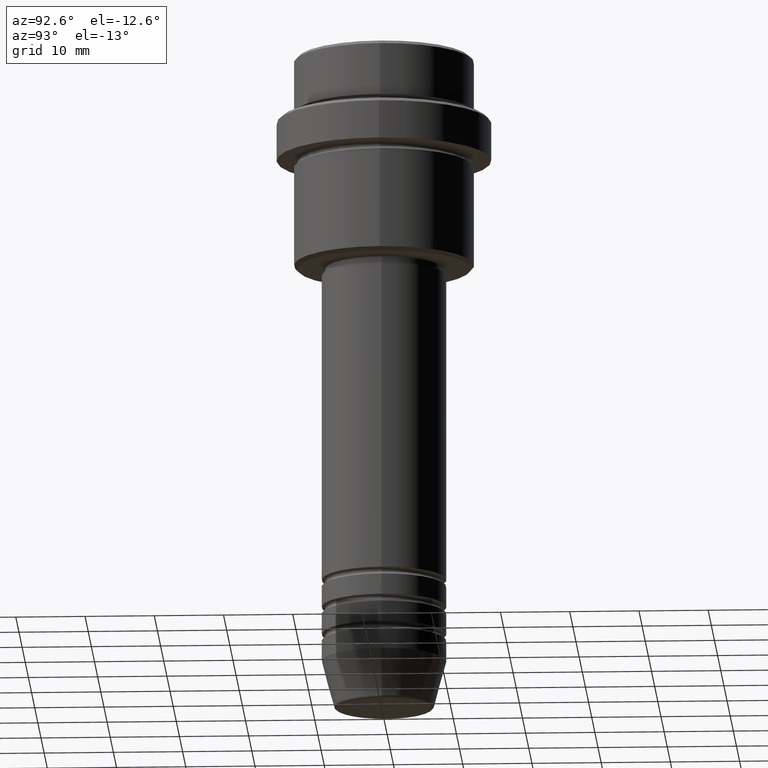
[diagram: clean part render]
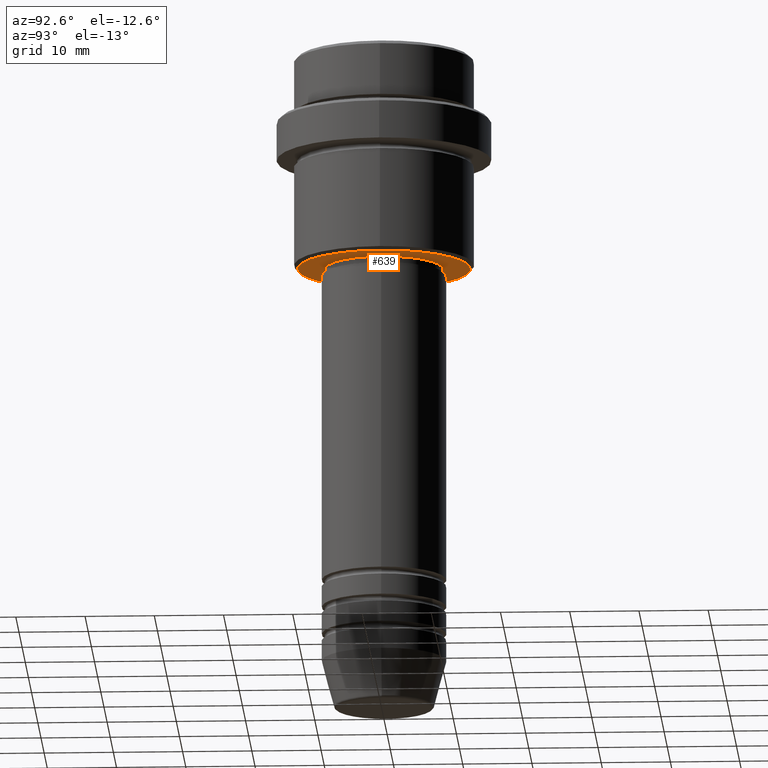
[diagram: same view with one face highlighted and labeled with its STEP entity id]
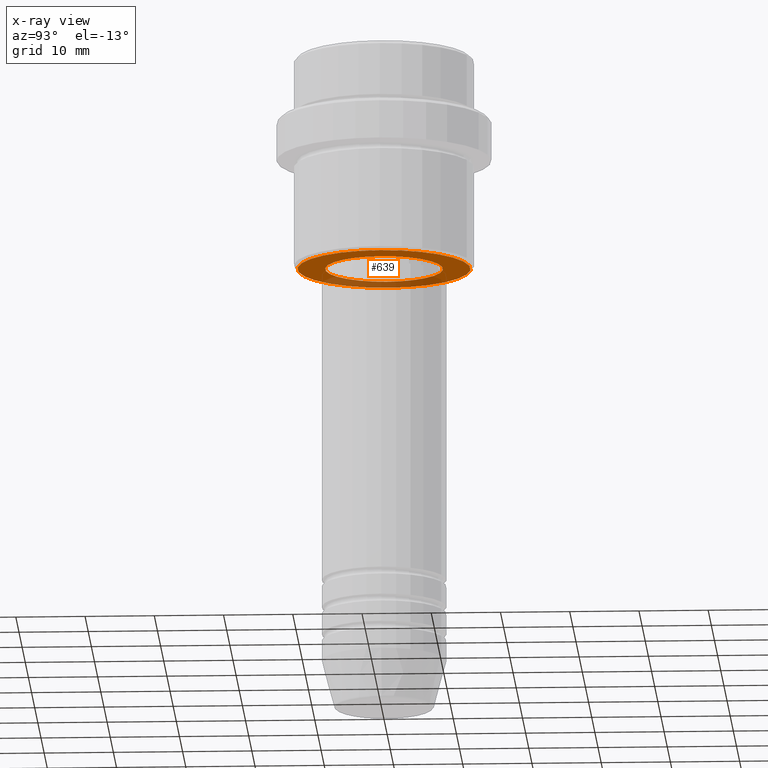
[diagram: x-ray of the same camera — body ghosted, the highlighted face saturated]
A machine part, auxiliary view. The second image highlights one B-rep face of the part: STEP entity #639.
The next image is the same camera in x-ray: the body ghosted, the highlighted face saturated — about 28% of this face is hidden behind the body in this view.
In plain terms, the highlighted planar face has unit normal (0, 0, -1).
Its self-contained STEP definition (entity closure, byte-faithful):
#15 = FACE_OUTER_BOUND ( 'NONE', #675, .T. ) ;
#32 = VERTEX_POINT ( 'NONE', #83 ) ;
#38 = DIRECTION ( 'NONE',  ( -1.000000000000000000, 0.000000000000000000, -0.000000000000000000 ) ) ;
#49 = FACE_BOUND ( 'NONE', #570, .T. ) ;
#83 = CARTESIAN_POINT ( 'NONE',  ( 12.49999999999998401, 0.000000000000000000, -30.99999999999999645 ) ) ;
#150 = CARTESIAN_POINT ( 'NONE',  ( 0.000000000000000000, 13.00000000000000000, -30.99999999999999645 ) ) ;
#167 = VERTEX_POINT ( 'NONE', #634 ) ;
#189 = AXIS2_PLACEMENT_3D ( 'NONE', #879, #762, #643 ) ;
#195 = DIRECTION ( 'NONE',  ( 1.000000000000000000, 0.000000000000000000, 0.000000000000000000 ) ) ;
#218 = AXIS2_PLACEMENT_3D ( 'NONE', #1031, #463, #352 ) ;
#274 = EDGE_CURVE ( 'NONE', #167, #761, #751, .T. ) ;
#292 = EDGE_CURVE ( 'NONE', #1345, #32, #313, .T. ) ;
#300 = CARTESIAN_POINT ( 'NONE',  ( 0.000000000000000000, 0.000000000000000000, -30.99999999999999645 ) ) ;
#313 = CIRCLE ( 'NONE', #1086, 12.49999999999998401 ) ;
#352 = DIRECTION ( 'NONE',  ( -1.000000000000000000, 0.000000000000000000, 0.000000000000000000 ) ) ;
#455 = ORIENTED_EDGE ( 'NONE', *, *, #274, .T. ) ;
#463 = DIRECTION ( 'NONE',  ( 0.000000000000000000, 0.000000000000000000, -1.000000000000000000 ) ) ;
#570 = EDGE_LOOP ( 'NONE', ( #455, #1281 ) ) ;
#620 = DIRECTION ( 'NONE',  ( -0.000000000000000000, -0.000000000000000000, 1.000000000000000000 ) ) ;
#634 = CARTESIAN_POINT ( 'NONE',  ( 8.499999999999994671, 0.000000000000000000, -30.99999999999999289 ) ) ;
#639 = ADVANCED_FACE ( 'NONE', ( #15, #49 ), #1256, .T. ) ;
#643 = DIRECTION ( 'NONE',  ( 1.000000000000000000, 0.000000000000000000, 0.000000000000000000 ) ) ;
#647 = EDGE_CURVE ( 'NONE', #32, #1345, #1286, .T. ) ;
#675 = EDGE_LOOP ( 'NONE', ( #990, #1212 ) ) ;
#751 = CIRCLE ( 'NONE', #1337, 8.499999999999994671 ) ;
#761 = VERTEX_POINT ( 'NONE', #906 ) ;
#762 = DIRECTION ( 'NONE',  ( -0.000000000000000000, -0.000000000000000000, 1.000000000000000000 ) ) ;
#788 = DIRECTION ( 'NONE',  ( 0.000000000000000000, 0.000000000000000000, -1.000000000000000000 ) ) ;
#802 = CIRCLE ( 'NONE', #189, 8.499999999999994671 ) ;
#846 = AXIS2_PLACEMENT_3D ( 'NONE', #150, #788, #38 ) ;
#879 = CARTESIAN_POINT ( 'NONE',  ( 0.000000000000000000, 0.000000000000000000, -30.99999999999999289 ) ) ;
#906 = CARTESIAN_POINT ( 'NONE',  ( -8.499999999999994671, 1.040949779275249745E-15, -30.99999999999999289 ) ) ;
#990 = ORIENTED_EDGE ( 'NONE', *, *, #647, .T. ) ;
#1031 = CARTESIAN_POINT ( 'NONE',  ( 0.000000000000000000, 0.000000000000000000, -30.99999999999999645 ) ) ;
#1047 = DIRECTION ( 'NONE',  ( -1.000000000000000000, 0.000000000000000000, 0.000000000000000000 ) ) ;
#1078 = CARTESIAN_POINT ( 'NONE',  ( -12.49999999999998401, 1.561424668912874125E-15, -30.99999999999999645 ) ) ;
#1086 = AXIS2_PLACEMENT_3D ( 'NONE', #300, #1157, #1047 ) ;
#1157 = DIRECTION ( 'NONE',  ( 0.000000000000000000, 0.000000000000000000, -1.000000000000000000 ) ) ;
#1175 = CARTESIAN_POINT ( 'NONE',  ( 0.000000000000000000, 0.000000000000000000, -30.99999999999999289 ) ) ;
#1212 = ORIENTED_EDGE ( 'NONE', *, *, #292, .T. ) ;
#1256 = PLANE ( 'NONE',  #846 ) ;
#1281 = ORIENTED_EDGE ( 'NONE', *, *, #1382, .T. ) ;
#1286 = CIRCLE ( 'NONE', #218, 12.49999999999998401 ) ;
#1337 = AXIS2_PLACEMENT_3D ( 'NONE', #1175, #620, #195 ) ;
#1345 = VERTEX_POINT ( 'NONE', #1078 ) ;
#1382 = EDGE_CURVE ( 'NONE', #761, #167, #802, .T. ) ;